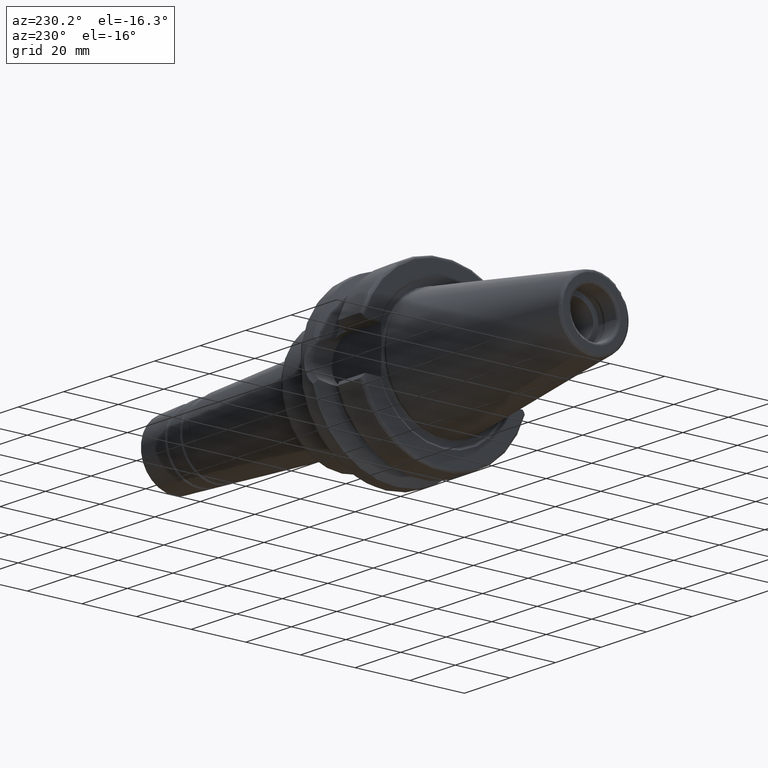
[diagram: clean part render]
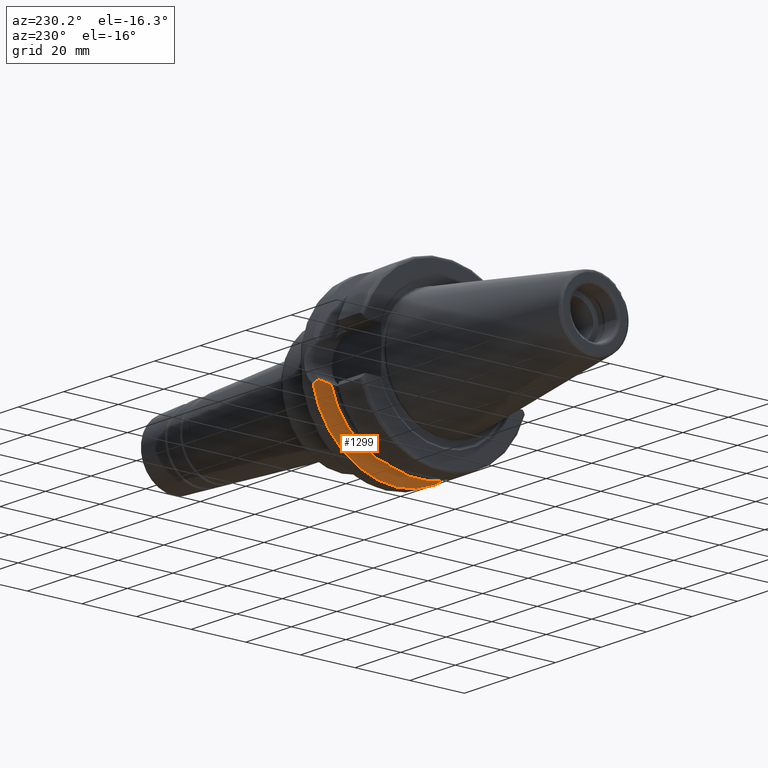
[diagram: same view with one face highlighted and labeled with its STEP entity id]
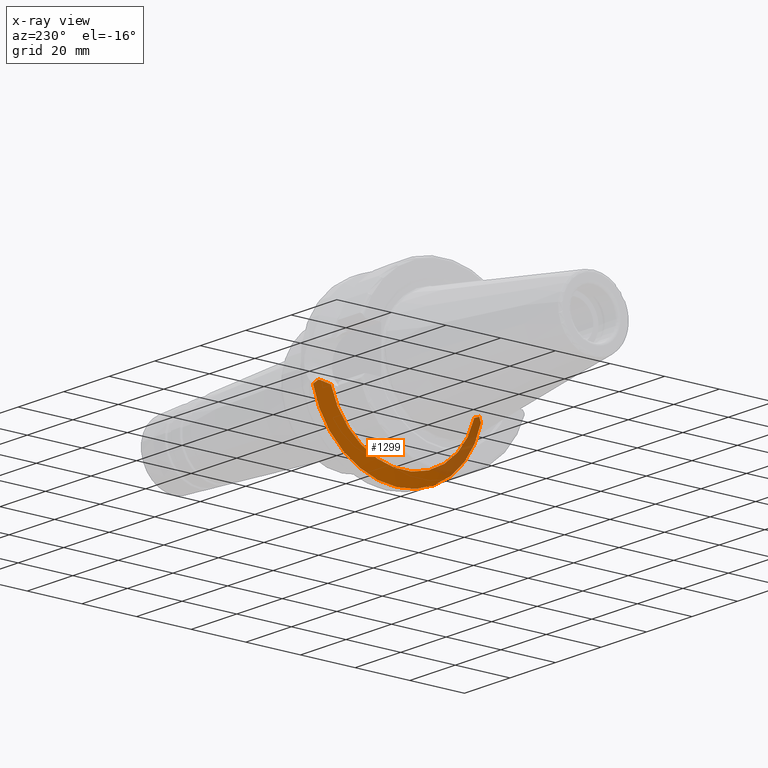
[diagram: x-ray of the same camera — body ghosted, the highlighted face saturated]
A machine part, auxiliary view. The second image highlights one B-rep face of the part: STEP entity #1299.
The next image is the same camera in x-ray: the body ghosted, the highlighted face saturated — about 20% of this face is hidden behind the body in this view.
In plain terms, the highlighted conical surface has half-angle 60.125 deg.
Its self-contained STEP definition (entity closure, byte-faithful):
#27=B_SPLINE_CURVE_WITH_KNOTS('',3,(#2141,#2142,#2143,#2144,#2145,#2146,
#2147,#2148,#2149,#2150,#2151,#2152,#2153),.UNSPECIFIED.,.F.,.F.,(4,3,3,
3,4),(0.,0.0663857987262874,0.104853023511296,0.177953491129426,0.209498394876945),
 .UNSPECIFIED.);
#33=B_SPLINE_CURVE_WITH_KNOTS('',3,(#2213,#2214,#2215,#2216,#2217,#2218),
 .UNSPECIFIED.,.F.,.F.,(4,2,4),(3.3443816511031,3.62699288756974,3.70848737461385),
 .UNSPECIFIED.);
#34=B_SPLINE_CURVE_WITH_KNOTS('',3,(#2222,#2223,#2224,#2225,#2226,#2227),
 .UNSPECIFIED.,.F.,.F.,(4,2,4),(1.4642102789956,1.54570476603971,1.82831600250635),
 .UNSPECIFIED.);
#35=B_SPLINE_CURVE_WITH_KNOTS('',3,(#2228,#2229,#2230,#2231,#2232,#2233,
#2234,#2235,#2236,#2237,#2238,#2239,#2240),.UNSPECIFIED.,.F.,.F.,(4,3,3,
3,4),(1.38777878078145E-17,0.0731680095135469,0.104649820620959,0.171142802075839,
0.209508940919759),.UNSPECIFIED.);
#250=CONICAL_SURFACE('',#1455,29.2970358274569,1.04937921276159);
#295=FACE_OUTER_BOUND('',#382,.T.);
#382=EDGE_LOOP('',(#987,#988,#989,#990,#991,#992));
#481=CIRCLE('',#1452,31.5000000000001);
#484=CIRCLE('',#1456,27.0940716549138);
#563=VERTEX_POINT('',#2139);
#564=VERTEX_POINT('',#2140);
#570=VERTEX_POINT('',#2197);
#572=VERTEX_POINT('',#2212);
#573=VERTEX_POINT('',#2219);
#574=VERTEX_POINT('',#2221);
#713=EDGE_CURVE('',#563,#564,#27,.T.);
#720=EDGE_CURVE('',#564,#570,#481,.T.);
#724=EDGE_CURVE('',#563,#572,#33,.T.);
#725=EDGE_CURVE('',#572,#573,#484,.T.);
#726=EDGE_CURVE('',#573,#574,#34,.T.);
#727=EDGE_CURVE('',#570,#574,#35,.T.);
#987=ORIENTED_EDGE('',*,*,#713,.F.);
#988=ORIENTED_EDGE('',*,*,#724,.T.);
#989=ORIENTED_EDGE('',*,*,#725,.T.);
#990=ORIENTED_EDGE('',*,*,#726,.T.);
#991=ORIENTED_EDGE('',*,*,#727,.F.);
#992=ORIENTED_EDGE('',*,*,#720,.F.);
#1299=ADVANCED_FACE('',(#295),#250,.T.);
#1452=AXIS2_PLACEMENT_3D('',#2198,#1728,#1729);
#1455=AXIS2_PLACEMENT_3D('',#2211,#1734,#1735);
#1456=AXIS2_PLACEMENT_3D('',#2220,#1736,#1737);
#1728=DIRECTION('center_axis',(1.,0.,0.));
#1729=DIRECTION('ref_axis',(0.,0.,-1.));
#1734=DIRECTION('center_axis',(1.,0.,0.));
#1735=DIRECTION('ref_axis',(0.,1.,0.));
#1736=DIRECTION('center_axis',(1.,0.,0.));
#1737=DIRECTION('ref_axis',(0.,0.,-1.));
#2139=CARTESIAN_POINT('',(20.7197593187301,-29.382324732277,-5.61358863864523));
#2140=CARTESIAN_POINT('',(21.6309636926619,-30.7261128229805,-6.93945176433102));
#2141=CARTESIAN_POINT('Ctrl Pts',(20.7197657819788,-29.3823237299493,-5.61358132195236));
#2142=CARTESIAN_POINT('Ctrl Pts',(20.8148408821884,-29.5238838511283,-5.7546101488345));
#2143=CARTESIAN_POINT('Ctrl Pts',(20.9104055783237,-29.6657166596105,-5.89544203107064));
#2144=CARTESIAN_POINT('Ctrl Pts',(21.0063031067432,-29.8076037972815,-6.03588995803085));
#2145=CARTESIAN_POINT('Ctrl Pts',(21.0618708916131,-29.8898202430217,-6.11727245369445));
#2146=CARTESIAN_POINT('Ctrl Pts',(21.1175496497856,-29.9720546777218,-6.19852652970694));
#2147=CARTESIAN_POINT('Ctrl Pts',(21.1733023497016,-30.0542624823723,-6.27961994688687));
#2148=CARTESIAN_POINT('Ctrl Pts',(21.2792509450996,-30.2104845388214,-6.43372429805168));
#2149=CARTESIAN_POINT('Ctrl Pts',(21.3857145189625,-30.3669699337808,-6.5875976402581));
#2150=CARTESIAN_POINT('Ctrl Pts',(21.4925206651177,-30.5234882138239,-6.74104749484797));
#2151=CARTESIAN_POINT('Ctrl Pts',(21.5386105152909,-30.5910302452167,-6.80726541452524));
#2152=CARTESIAN_POINT('Ctrl Pts',(21.5847636249085,-30.6585782245638,-6.87340481119639));
#2153=CARTESIAN_POINT('Ctrl Pts',(21.6309636926619,-30.7261128229805,-6.93945176433104));
#2197=CARTESIAN_POINT('',(21.6309636926619,30.7261128229805,-6.93945176433102));
#2198=CARTESIAN_POINT('Origin',(21.6309636926619,0.,0.));
#2211=CARTESIAN_POINT('Origin',(20.3654818463309,0.,0.));
#2212=CARTESIAN_POINT('',(19.1,-26.201311395455,-6.89782574439221));
#2213=CARTESIAN_POINT('Ctrl Pts',(20.7197593187301,-29.382324732277,-5.61358863864523));
#2214=CARTESIAN_POINT('Ctrl Pts',(20.3012218741369,-28.558364647748,-6.04376984297407));
#2215=CARTESIAN_POINT('Ctrl Pts',(19.867744184216,-27.7064624084632,-6.39234949299032));
#2216=CARTESIAN_POINT('Ctrl Pts',(19.3406963650697,-26.6728819297428,-6.7486710865604));
#2217=CARTESIAN_POINT('Ctrl Pts',(19.2210929544554,-26.438473693351,-6.82497151762395));
#2218=CARTESIAN_POINT('Ctrl Pts',(19.1,-26.201311395455,-6.89782574439221));
#2219=CARTESIAN_POINT('',(19.1,26.201311395455,-6.89782574439221));
#2220=CARTESIAN_POINT('Origin',(19.1,0.,0.));
#2221=CARTESIAN_POINT('',(20.7197593187301,29.382324732277,-5.61358863864523));
#2222=CARTESIAN_POINT('Ctrl Pts',(19.1,26.201311395455,-6.89782574439221));
#2223=CARTESIAN_POINT('Ctrl Pts',(19.2210929544554,26.438473693351,-6.82497151762395));
#2224=CARTESIAN_POINT('Ctrl Pts',(19.3406963650697,26.6728819297427,-6.74867108656041));
#2225=CARTESIAN_POINT('Ctrl Pts',(19.8677441842159,27.7064624084632,-6.39234949299032));
#2226=CARTESIAN_POINT('Ctrl Pts',(20.3012218741369,28.558364647748,-6.04376984297407));
#2227=CARTESIAN_POINT('Ctrl Pts',(20.7197593187301,29.382324732277,-5.61358863864523));
#2228=CARTESIAN_POINT('Ctrl Pts',(21.6309636926618,30.7261128229805,-6.93945176433104));
#2229=CARTESIAN_POINT('Ctrl Pts',(21.5238086080159,30.5694750524797,-6.78626439474683));
#2230=CARTESIAN_POINT('Ctrl Pts',(21.4169091348659,30.4127664111858,-6.63257916591966));
#2231=CARTESIAN_POINT('Ctrl Pts',(21.310456536906,30.2562241217923,-6.47857776697082));
#2232=CARTESIAN_POINT('Ctrl Pts',(21.2646534516076,30.1888690738994,-6.41231598146896));
#2233=CARTESIAN_POINT('Ctrl Pts',(21.2189325585309,30.1215446447243,-6.34599600137116));
#2234=CARTESIAN_POINT('Ctrl Pts',(21.1733066768474,30.0542689338646,-6.27963381498107));
#2235=CARTESIAN_POINT('Ctrl Pts',(21.0769398924116,29.9121753745297,-6.13946971788114));
#2236=CARTESIAN_POINT('Ctrl Pts',(20.9807965697314,29.7700032858785,-5.99882548575242));
#2237=CARTESIAN_POINT('Ctrl Pts',(20.8850589555166,29.6279802338881,-5.85787328488443));
#2238=CARTESIAN_POINT('Ctrl Pts',(20.8298188005531,29.5460335981308,-5.77654452520884));
#2239=CARTESIAN_POINT('Ctrl Pts',(20.7747129164645,29.4641363179111,-5.69511373443865));
#2240=CARTESIAN_POINT('Ctrl Pts',(20.7197698702457,29.3823300093151,-5.61361800937777));